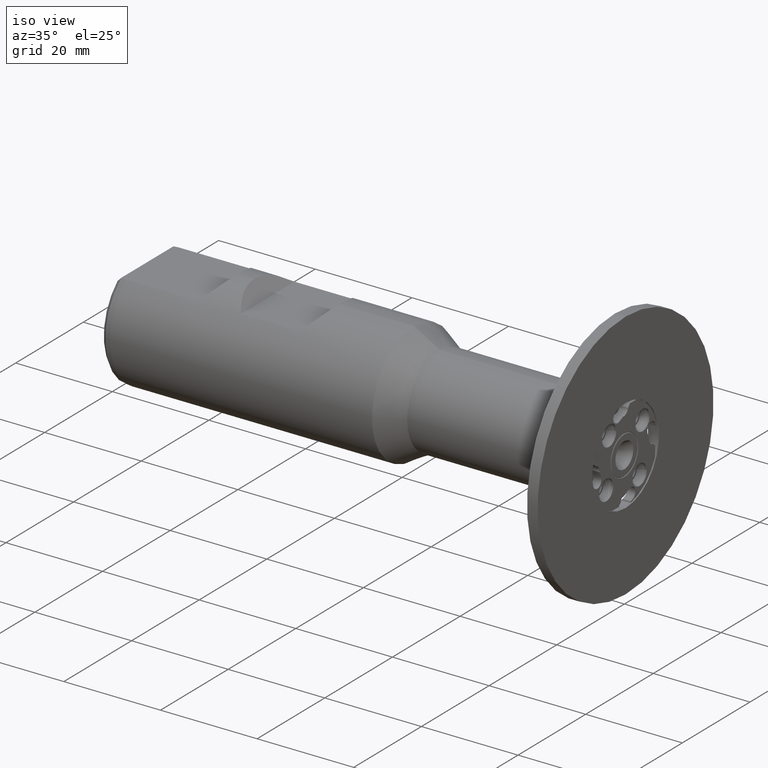
[diagram: clean part render]
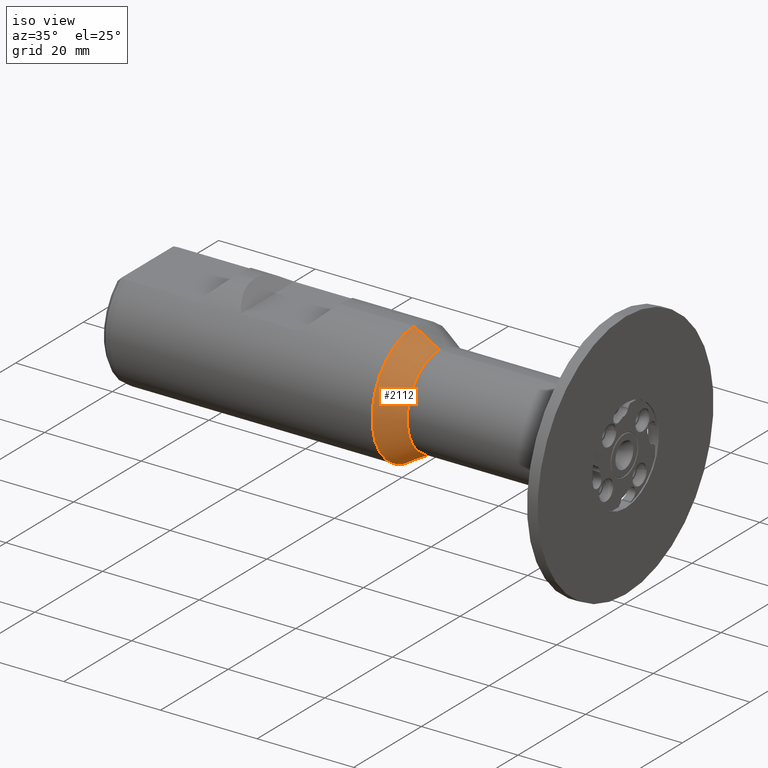
[diagram: same view with one face highlighted and labeled with its STEP entity id]
A machine part, iso view. The second image highlights one B-rep face of the part: STEP entity #2112.
In plain terms, the highlighted conical surface has half-angle 30 deg.
Its self-contained STEP definition (entity closure, byte-faithful):
#23 = ORIENTED_EDGE ( 'NONE', *, *, #4326, .T. ) ;
#36 = CARTESIAN_POINT ( 'NONE',  ( -38.29376628615804634, 0.0000000000000000000, 9.499999999999994671 ) ) ;
#232 = CARTESIAN_POINT ( 'NONE',  ( -38.29376628615804634, 1.347111479062088207E-15, -9.499999999999994671 ) ) ;
#278 = CARTESIAN_POINT ( 'NONE',  ( -38.29376628615804634, 0.0000000000000000000, 9.499999999999994671 ) ) ;
#304 = EDGE_LOOP ( 'NONE', ( #622, #1003, #1164, #23 ) ) ;
#362 = CARTESIAN_POINT ( 'NONE',  ( -38.29376628615804634, 0.0000000000000000000, 0.0000000000000000000 ) ) ;
#457 = CONICAL_SURFACE ( 'NONE', #4358, 9.499999999999994671, 0.5235987755983002589 ) ;
#622 = ORIENTED_EDGE ( 'NONE', *, *, #2412, .F. ) ;
#963 = DIRECTION ( 'NONE',  ( -0.8660254037844380415, 0.0000000000000000000, 0.5000000000000012212 ) ) ;
#975 = DIRECTION ( 'NONE',  ( 0.0000000000000000000, 0.0000000000000000000, 1.000000000000000000 ) ) ;
#1003 = ORIENTED_EDGE ( 'NONE', *, *, #1060, .F. ) ;
#1005 = CARTESIAN_POINT ( 'NONE',  ( -43.48991870886467836, 0.0000000000000000000, 12.50000000000000178 ) ) ;
#1060 = EDGE_CURVE ( 'NONE', #2260, #2665, #1720, .T. ) ;
#1164 = ORIENTED_EDGE ( 'NONE', *, *, #2109, .T. ) ;
#1272 = CARTESIAN_POINT ( 'NONE',  ( -38.29376628615804634, 0.0000000000000000000, 0.0000000000000000000 ) ) ;
#1290 = VERTEX_POINT ( 'NONE', #3484 ) ;
#1720 = CIRCLE ( 'NONE', #1918, 9.499999999999994671 ) ;
#1742 = FACE_OUTER_BOUND ( 'NONE', #304, .T. ) ;
#1801 = CARTESIAN_POINT ( 'NONE',  ( -38.29376628615804634, 1.163414459189984894E-15, -9.499999999999994671 ) ) ;
#1830 = CARTESIAN_POINT ( 'NONE',  ( -43.48991870886467836, 0.0000000000000000000, 0.0000000000000000000 ) ) ;
#1918 = AXIS2_PLACEMENT_3D ( 'NONE', #362, #2710, #4261 ) ;
#2109 = EDGE_CURVE ( 'NONE', #2260, #3526, #3883, .T. ) ;
#2112 = ADVANCED_FACE ( 'NONE', ( #1742 ), #457, .T. ) ;
#2125 = DIRECTION ( 'NONE',  ( 1.000000000000000000, -0.0000000000000000000, -0.0000000000000000000 ) ) ;
#2260 = VERTEX_POINT ( 'NONE', #36 ) ;
#2412 = EDGE_CURVE ( 'NONE', #2665, #1290, #3195, .T. ) ;
#2665 = VERTEX_POINT ( 'NONE', #232 ) ;
#2710 = DIRECTION ( 'NONE',  ( 1.000000000000000000, -0.0000000000000000000, -0.0000000000000000000 ) ) ;
#2783 = DIRECTION ( 'NONE',  ( -0.8660254037844380415, 6.123233995736782060E-17, -0.5000000000000012212 ) ) ;
#2961 = VECTOR ( 'NONE', #963, 999.9999999999998863 ) ;
#3137 = DIRECTION ( 'NONE',  ( 0.0000000000000000000, 0.0000000000000000000, 1.000000000000000000 ) ) ;
#3195 = LINE ( 'NONE', #1801, #3406 ) ;
#3245 = AXIS2_PLACEMENT_3D ( 'NONE', #1830, #2125, #3137 ) ;
#3406 = VECTOR ( 'NONE', #2783, 999.9999999999998863 ) ;
#3484 = CARTESIAN_POINT ( 'NONE',  ( -43.48991870886467836, 1.530808498934191916E-15, -12.50000000000000178 ) ) ;
#3526 = VERTEX_POINT ( 'NONE', #1005 ) ;
#3844 = CIRCLE ( 'NONE', #3245, 12.50000000000000000 ) ;
#3883 = LINE ( 'NONE', #278, #2961 ) ;
#4032 = DIRECTION ( 'NONE',  ( -1.000000000000000000, 0.0000000000000000000, 0.0000000000000000000 ) ) ;
#4261 = DIRECTION ( 'NONE',  ( 0.0000000000000000000, 0.0000000000000000000, -1.000000000000000000 ) ) ;
#4326 = EDGE_CURVE ( 'NONE', #3526, #1290, #3844, .T. ) ;
#4358 = AXIS2_PLACEMENT_3D ( 'NONE', #1272, #4032, #975 ) ;